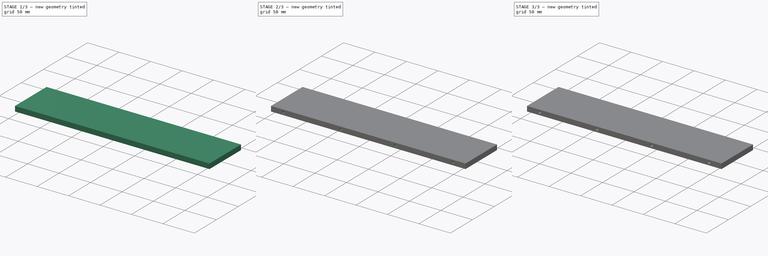
[diagram: build sequence overview — one tinted view per stage of 3, left to right]
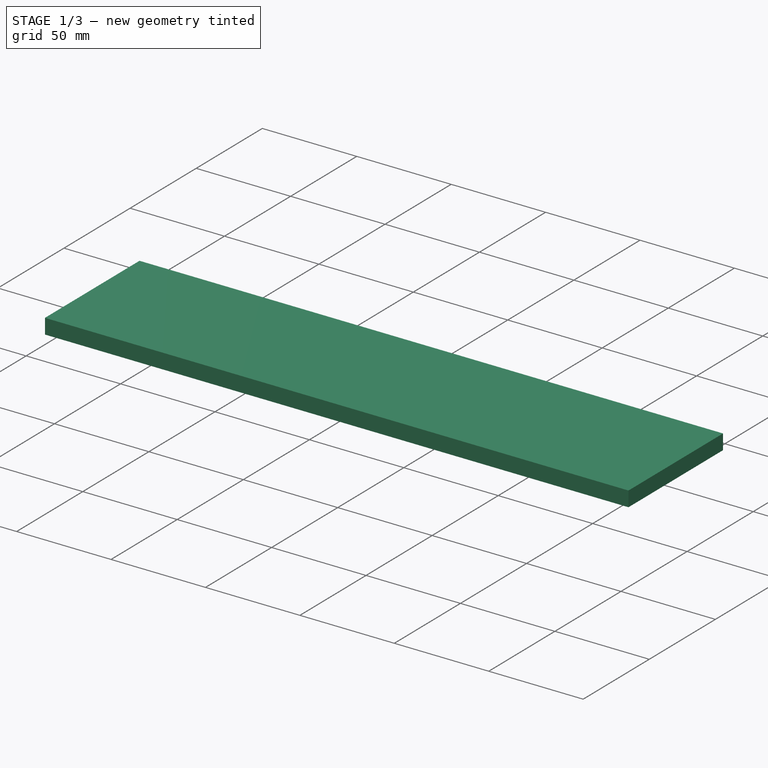
[diagram: stage 1 of 3 — iso view after this stage's code; geometry added in this stage tinted green]
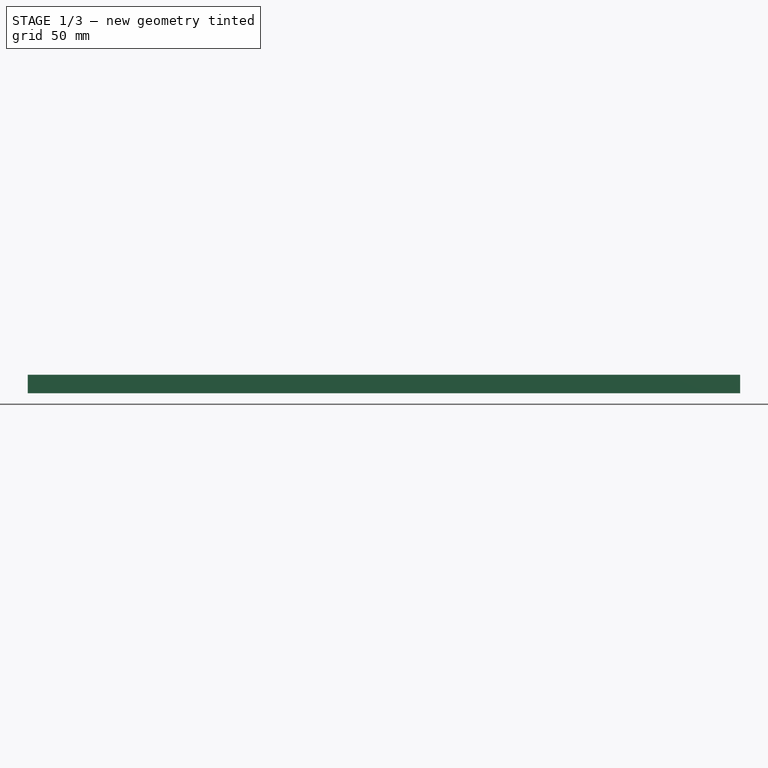
[diagram: stage 1 of 3 — front view after this stage's code; geometry added in this stage tinted green]
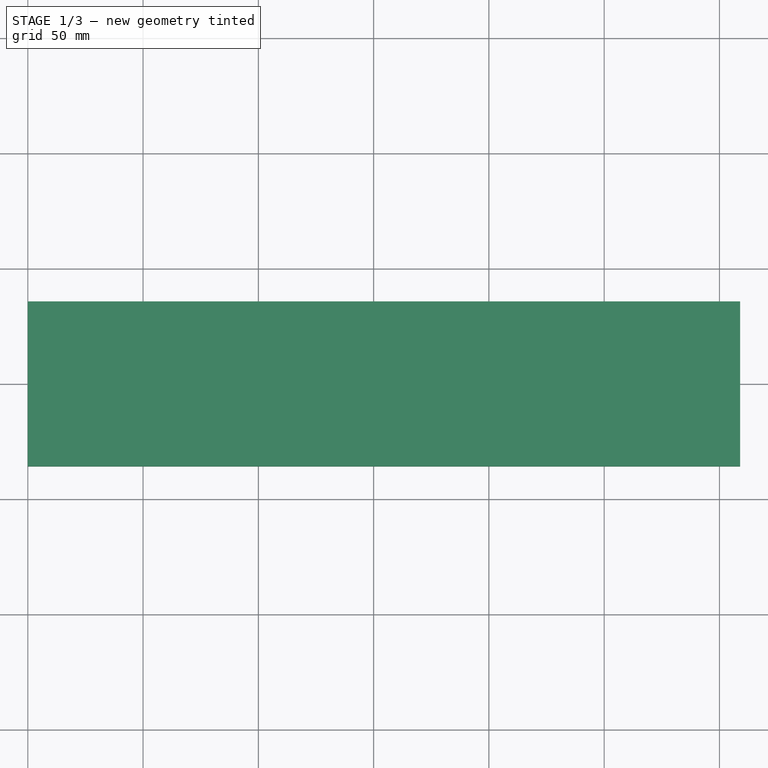
[diagram: stage 1 of 3 — top view after this stage's code; geometry added in this stage tinted green]
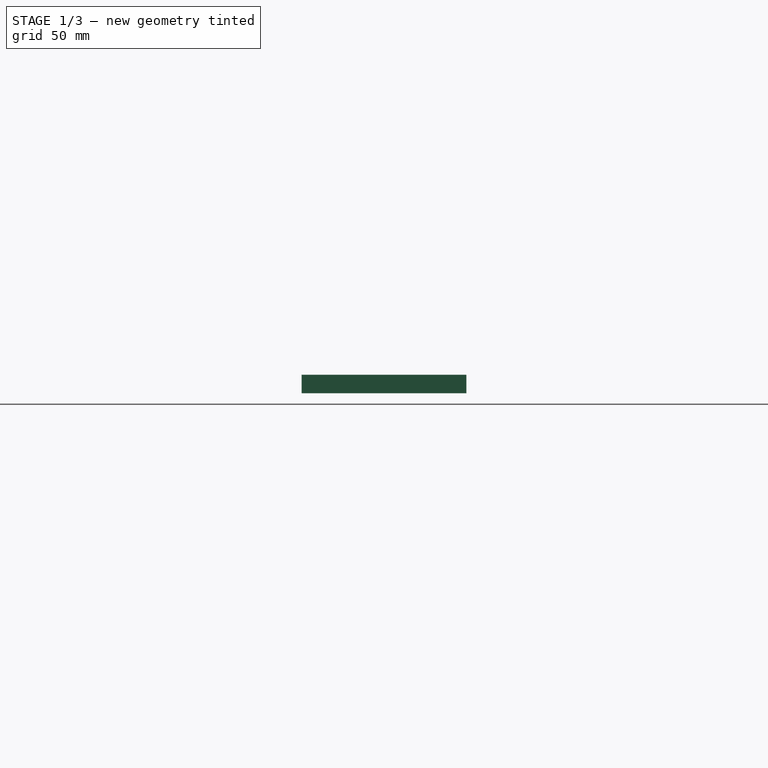
[diagram: stage 1 of 3 — right view after this stage's code; geometry added in this stage tinted green]
FCSTD DOCUMENT  (FreeCAD 0.18R14555 (Git shallow))
Label: x-plate
License: CreativeCommons Attribution-ShareAlike
LicenseURL: http://creativecommons.org/licenses/by-sa/4.0/
objects: Sketcher::SketchObject×4, TechDraw::DrawViewAnnotation×3, PartDesign::Hole×2, PartDesign::Plane×2, PartDesign::Pad×1, PartDesign::Mirrored×1, PartDesign::Pocket×1, PartDesign::Body×1, TechDraw::DrawSVGTemplate×1, TechDraw::DrawProjGroupItem×1, TechDraw::DrawProjGroup×1, TechDraw::DrawViewSection×1, TechDraw::DrawViewPart×1, TechDraw::DrawViewSymbol×1, TechDraw::DrawPage×1
note: 16 computed .brp shape members not serialized (recipe doc carries the construction recipe); baked Part::Feature solids carry a one-line shape summary decoded from their .brp

FEATURE [Sketcher::SketchObject] Sketch
  MapMode = 5
  Support = -> [XY_Plane]
  sketch-geometry (4):
    g0: LineSegment StartX=309 StartY=35.75 StartZ=0 EndX=0 EndY=35.75 EndZ=0
    g1: LineSegment StartX=0 StartY=35.75 StartZ=0 EndX=0 EndY=-35.75 EndZ=0
    g2: LineSegment StartX=0 StartY=-35.75 StartZ=0 EndX=309 EndY=-35.75 EndZ=0
    g3: LineSegment StartX=309 StartY=-35.75 StartZ=0 EndX=309 EndY=35.75 EndZ=0
  constraints (11):
    c: Coincident(g0,g1)
    c: Coincident(g2,g3)
    c: Coincident(g3,g0)
    c: Horizontal(g0)
    c: Horizontal(g2)
    c: Vertical(g3)
    c: DistanceX(g0,g0) = 309
    c: DistanceY(g1,g1) = 71.5
    c: Coincident(g1,g2)
    c: Symmetric(g1,g0,g-1)
    c: PointOnObject(g1,g-2)
FEATURE [PartDesign::Pad] Pad
  Length = 8
  Length2 = 100
  Midplane = true
  Profile = -> Sketch
  Type = 0
FEATURE [Sketcher::SketchObject] Sketch001
  ExternalGeometry = -> [Pad]
  MapMode = 5
  Placement = pos=(0,0,0) rot=(0.57735,0.57735,0.57735;2.0944rad)
  Support = -> [YZ_Plane]
  sketch-geometry (2):
    g0: Circle CenterX=-20.75 CenterY=0 CenterZ=0 NormalX=0 NormalY=0 NormalZ=1 AngleXU=0 Radius=2.05
    g1: Circle CenterX=20.75 CenterY=0 CenterZ=0 NormalX=0 NormalY=0 NormalZ=1 AngleXU=0 Radius=2.05
  constraints (6):
    c: PointOnObject(g0,g-1)
    c: Equal(g1,g0)
    c: Diameter(g1) = 4.1
    c: Symmetric(g0,g1,g-2)
    c: DistanceX(g1,g-3) = 15
    c: DistanceX(g0,g1) = 41.5
FEATURE [PartDesign::Hole] Hole
  BaseFeature = -> Pad
  Depth = 12
  DepthType = 0
  Diameter = 4.1
  DrillPoint = 1
  DrillPointAngle = 118
  HoleCutCountersinkAngle = 90
  HoleCutDepth = 0
  HoleCutDiameter = 0
  HoleCutType = 0
  ModelActualThread = false
  Profile = -> Sketch001
  Reversed = true
  Tapered = false
  TaperedAngle = 90
  ThreadAngle = 0
  ThreadClass = 0
  ThreadCutOffInner = 0
  ThreadCutOffOuter = 0
  ThreadDirection = 0
  ThreadFit = 0
  ThreadPitch = 0
  ThreadSize = 0
  ThreadType = 0
  Threaded = false
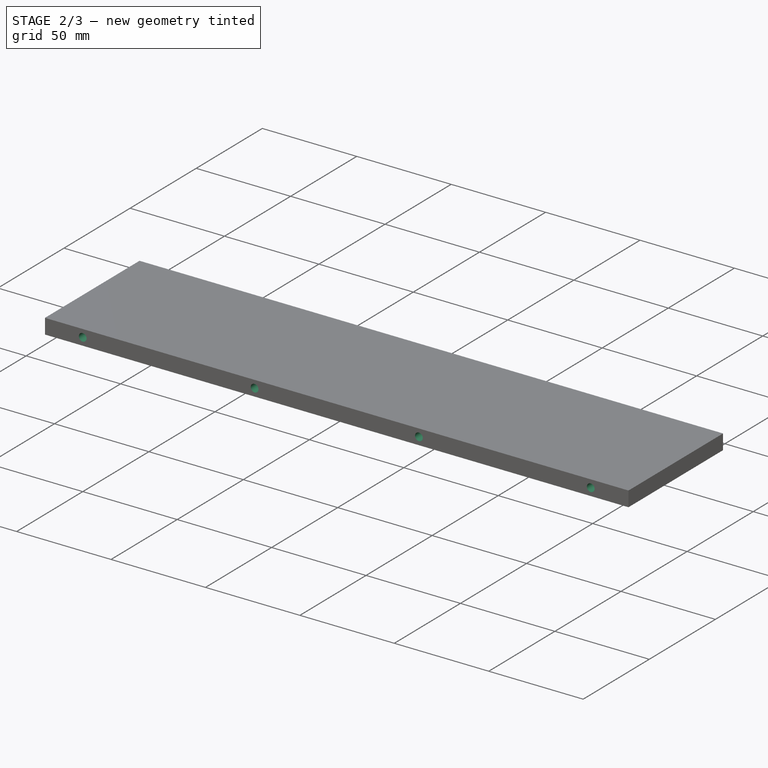
[diagram: stage 2 of 3 — iso view after this stage's code; geometry added in this stage tinted green]
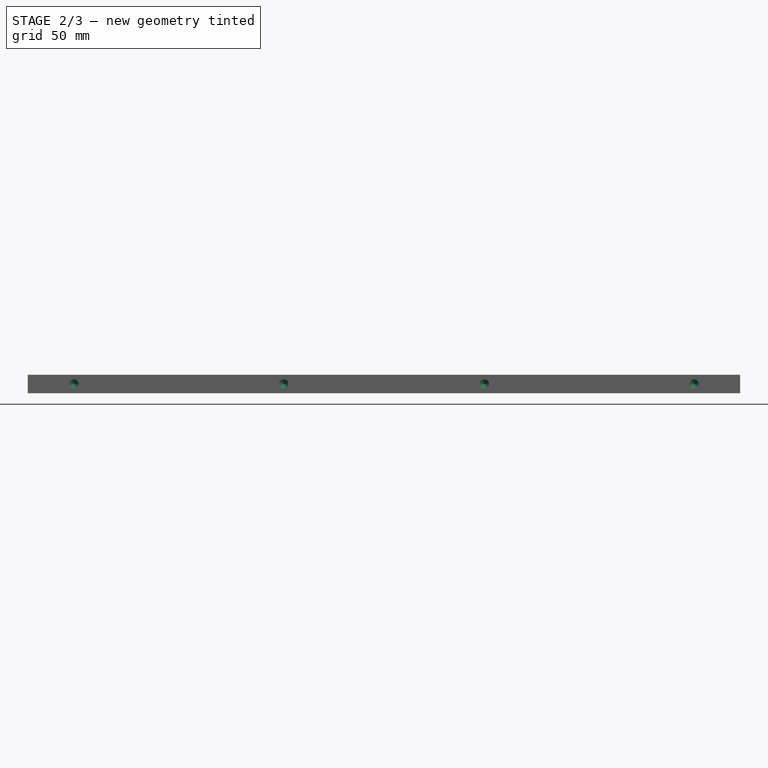
[diagram: stage 2 of 3 — front view after this stage's code; geometry added in this stage tinted green]
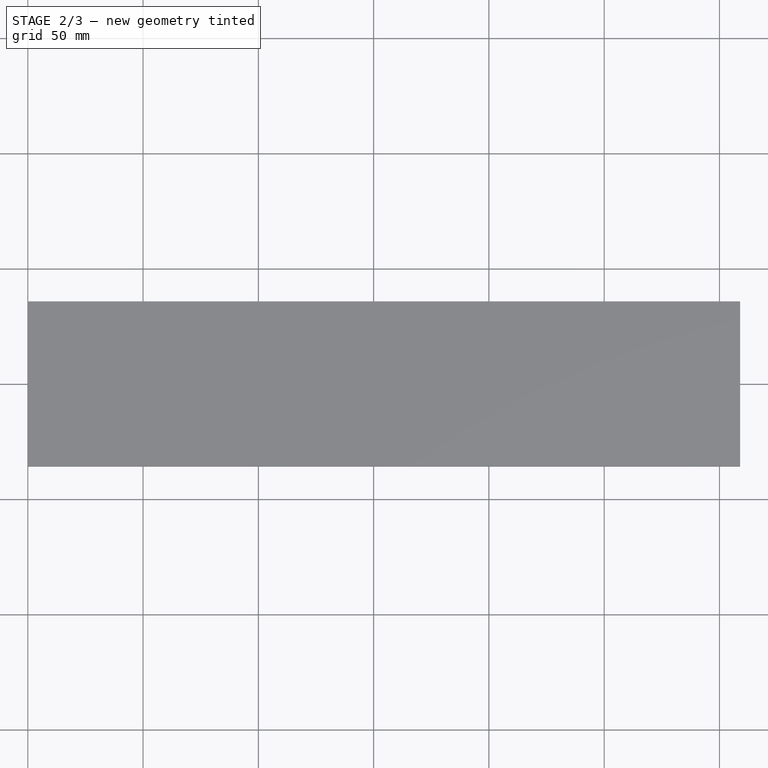
[diagram: stage 2 of 3 — top view after this stage's code; geometry added in this stage tinted green]
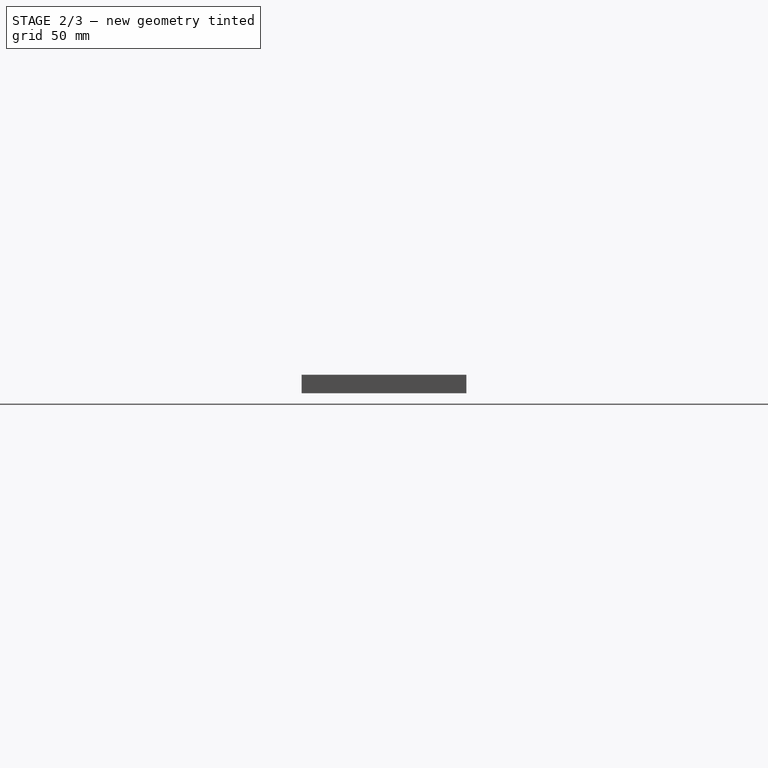
[diagram: stage 2 of 3 — right view after this stage's code; geometry added in this stage tinted green]
FEATURE [PartDesign::Plane] DatumPlane
  Length = 334.975
  MapMode = 5
  Placement = pos=(0,-35.75,0) rot=(1,0,0;1.5708rad)
  ResizeMode = 0
  Support = -> [Hole]
  Width = 35.975
FEATURE [Sketcher::SketchObject] Sketch002
  ExternalGeometry = -> [Hole]
  MapMode = 5
  Placement = pos=(0,-35.75,0) rot=(1,0,0;1.5708rad)
  Support = -> [DatumPlane]
  sketch-geometry (8):
    g0: Circle CenterX=20 CenterY=0 CenterZ=0 NormalX=0 NormalY=0 NormalZ=1 AngleXU=0 Radius=2.05
    g1: Circle CenterX=111 CenterY=0 CenterZ=0 NormalX=0 NormalY=0 NormalZ=1 AngleXU=0 Radius=2.05
    g2: Circle CenterX=198 CenterY=0 CenterZ=0 NormalX=0 NormalY=0 NormalZ=1 AngleXU=0 Radius=2.05
    g3: Circle CenterX=289 CenterY=0 CenterZ=0 NormalX=0 NormalY=0 NormalZ=1 AngleXU=0 Radius=2.05
    g4: LineSegment [constr] StartX=20 StartY=0 StartZ=0 EndX=111 EndY=0 EndZ=0
    g5: LineSegment [constr] StartX=198 StartY=0 StartZ=0 EndX=289 EndY=0 EndZ=0
    g6: LineSegment [constr] StartX=289 StartY=0 StartZ=0 EndX=309 EndY=0 EndZ=0
    g7: LineSegment [constr] StartX=0 StartY=0 StartZ=0 EndX=20 EndY=0 EndZ=0
  constraints (21):
    c: PointOnObject(g0,g-1)
    c: Diameter(g0) = 4.1
    c: DistanceX(g-1,g0) = 20
    c: PointOnObject(g1,g-1)
    c: PointOnObject(g3,g-1)
    c: Equal(g0,g1)
    c: Equal(g1,g2)
    c: Equal(g2,g3)
    c: PointOnObject(g2,g-1)
    c: Coincident(g4,g0)
    c: Coincident(g4,g1)
    c: Coincident(g5,g3)
    c: Coincident(g2,g5)
    c: Coincident(g6,g3)
    c: PointOnObject(g6,g-3)
    c: Horizontal(g6)
    c: Coincident(g7,g-1)
    c: Coincident(g7,g0)
    c: Equal(g7,g6)
    c: DistanceX(g-1,g1) = 111
    c: Equal(g4,g5)
FEATURE [PartDesign::Hole] Hole001
  BaseFeature = -> Hole
  Depth = 12
  DepthType = 0
  Diameter = 4.1
  DrillPoint = 1
  DrillPointAngle = 118
  HoleCutCountersinkAngle = 90
  HoleCutDepth = 0
  HoleCutDiameter = 0
  HoleCutType = 0
  ModelActualThread = false
  Profile = -> Sketch002
  Tapered = false
  TaperedAngle = 90
  ThreadAngle = 0
  ThreadClass = 0
  ThreadCutOffInner = 0
  ThreadCutOffOuter = 0
  ThreadDirection = 0
  ThreadFit = 0
  ThreadPitch = 0
  ThreadSize = 0
  ThreadType = 0
  Threaded = false
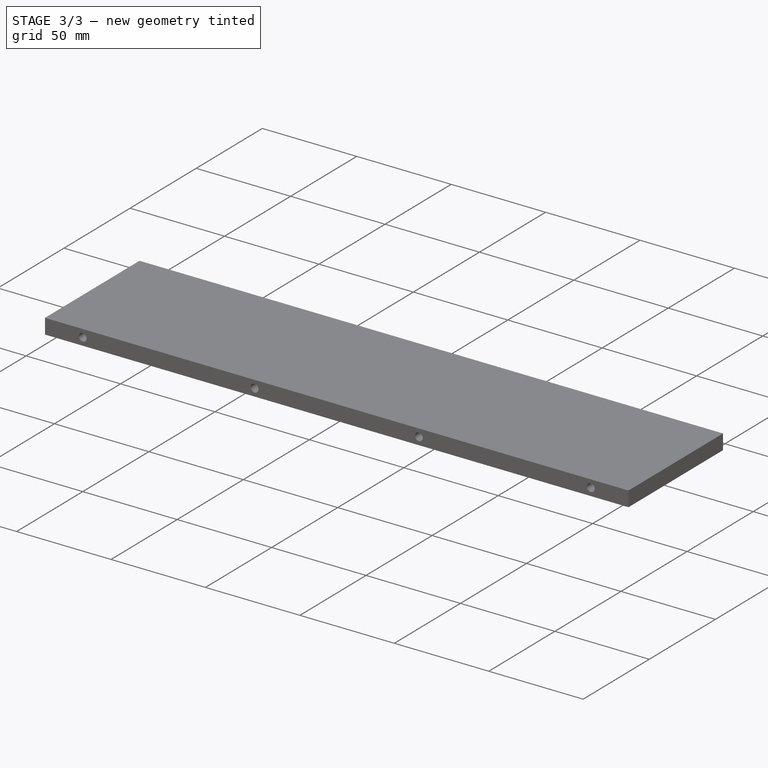
[diagram: stage 3 of 3 — iso view after this stage's code; geometry added in this stage tinted green]
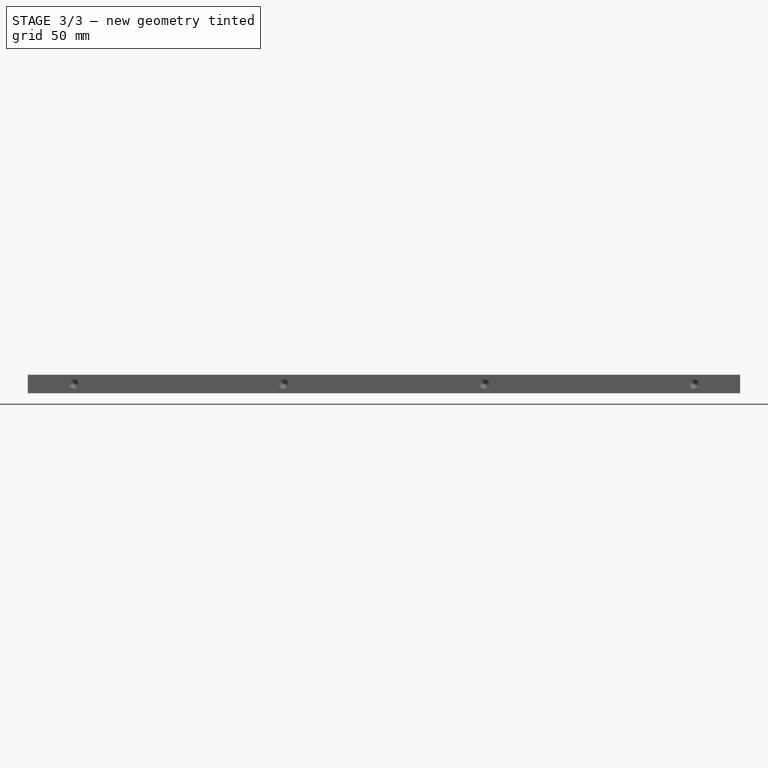
[diagram: stage 3 of 3 — front view after this stage's code; geometry added in this stage tinted green]
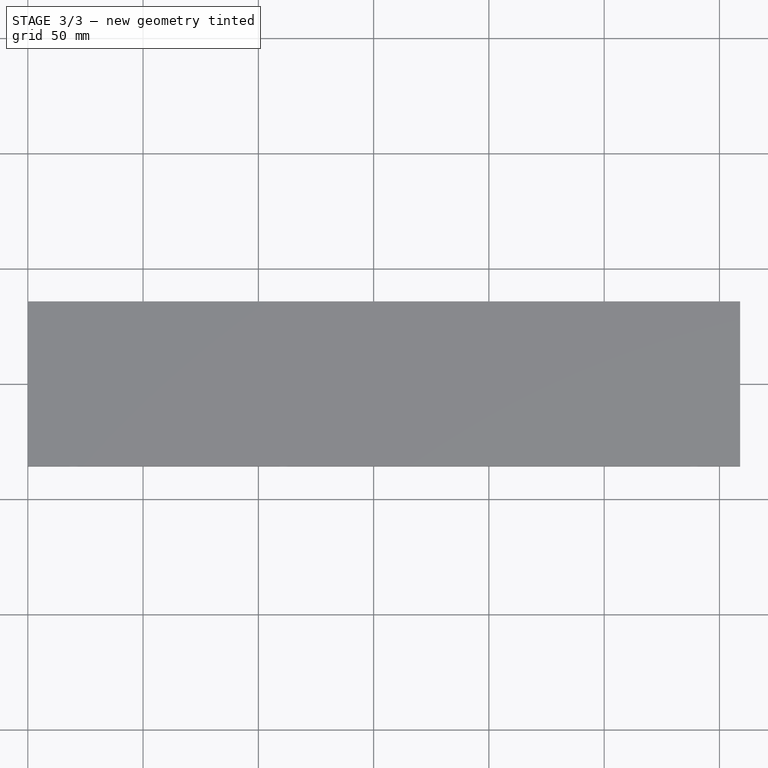
[diagram: stage 3 of 3 — top view after this stage's code; geometry added in this stage tinted green]
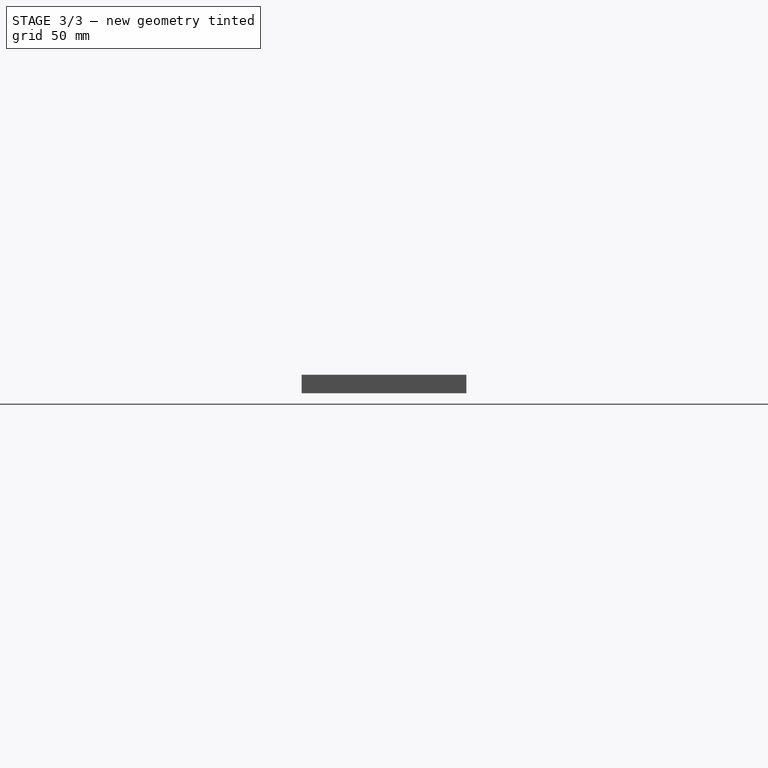
[diagram: stage 3 of 3 — right view after this stage's code; geometry added in this stage tinted green]
FEATURE [PartDesign::Mirrored] Mirrored
  BaseFeature = -> Hole001
  MirrorPlane = -> XZ_Plane
  Originals = -> [Hole001]
FEATURE [PartDesign::Plane] DatumPlane001
  Length = 349.205
  MapMode = 5
  Placement = pos=(0,0,-4) rot=(1,0,0;3.14159rad)
  ResizeMode = 0
  Support = -> [Mirrored]
  Width = 101.705
FEATURE [Sketcher::SketchObject] Sketch003
  MapMode = 5
  Placement = pos=(0,0,-4) rot=(1,0,0;3.14159rad)
  Support = -> [DatumPlane001]
  sketch-geometry (24):
    g0: LineSegment StartX=30.5 StartY=20.25 StartZ=0 EndX=30.5 EndY=-20.25 EndZ=0
    g1: ArcOfCircle CenterX=38.5 CenterY=-20.25 CenterZ=0 NormalX=0 NormalY=0 NormalZ=1 AngleXU=0 Radius=8 StartAngle=3.14159 EndAngle=4.71239
    g2: LineSegment StartX=38.5 StartY=-28.25 StartZ=0 EndX=92.5 EndY=-28.25 EndZ=0
    g3: ArcOfCircle CenterX=92.5 CenterY=-20.25 CenterZ=0 NormalX=0 NormalY=0 NormalZ=1 AngleXU=0 Radius=8 StartAngle=4.71239 EndAngle=6.28319
    g4: LineSegment StartX=100.5 StartY=-20.25 StartZ=0 EndX=100.5 EndY=20.25 EndZ=0
    g5: ArcOfCircle CenterX=92.5 CenterY=20.25 CenterZ=0 NormalX=0 NormalY=0 NormalZ=1 AngleXU=0 Radius=8 StartAngle=0 EndAngle=1.5708
    g6: LineSegment StartX=92.5 StartY=28.25 StartZ=0 EndX=38.5 EndY=28.25 EndZ=0
    g7: ArcOfCircle CenterX=38.5 CenterY=20.25 CenterZ=0 NormalX=0 NormalY=0 NormalZ=1 AngleXU=0 Radius=8 StartAngle=1.5708 EndAngle=3.14159
    g8: LineSegment StartX=122.5 StartY=20.25 StartZ=0 EndX=122.5 EndY=-20.25 EndZ=0
    g9: ArcOfCircle CenterX=130.5 CenterY=-20.25 CenterZ=0 NormalX=0 NormalY=0 NormalZ=1 AngleXU=0 Radius=8 StartAngle=3.14159 EndAngle=4.71239
    g10: LineSegment StartX=130.5 StartY=-28.25 StartZ=0 EndX=178.5 EndY=-28.25 EndZ=0
    g11: ArcOfCircle CenterX=178.5 CenterY=-20.25 CenterZ=0 NormalX=0 NormalY=0 NormalZ=1 AngleXU=0 Radius=8 StartAngle=4.71239 EndAngle=6.28319
    g12: LineSegment StartX=186.5 StartY=-20.25 StartZ=0 EndX=186.5 EndY=20.25 EndZ=0
    g13: ArcOfCircle CenterX=178.5 CenterY=20.25 CenterZ=0 NormalX=0 NormalY=0 NormalZ=1 AngleXU=0 Radius=8 StartAngle=1e-16 EndAngle=1.5708
    g14: LineSegment StartX=178.5 StartY=28.25 StartZ=0 EndX=130.5 EndY=28.25 EndZ=0
    g15: ArcOfCircle CenterX=130.5 CenterY=20.25 CenterZ=0 NormalX=0 NormalY=0 NormalZ=1 AngleXU=0 Radius=8 StartAngle=1.5708 EndAngle=3.14159
    g16: LineSegment StartX=208.5 StartY=20.25 StartZ=0 EndX=208.5 EndY=-20.25 EndZ=0
    g17: ArcOfCircle CenterX=216.5 CenterY=-20.25 CenterZ=0 NormalX=0 NormalY=0 NormalZ=1 AngleXU=0 Radius=8 StartAngle=3.14159 EndAngle=4.71239
    g18: LineSegment StartX=216.5 StartY=-28.25 StartZ=0 EndX=270.5 EndY=-28.25 EndZ=0
    g19: ArcOfCircle CenterX=270.5 CenterY=-20.25 CenterZ=0 NormalX=0 NormalY=0 NormalZ=1 AngleXU=0 Radius=8 StartAngle=4.71239 EndAngle=6.28319
    g20: LineSegment StartX=278.5 StartY=-20.25 StartZ=0 EndX=278.5 EndY=20.25 EndZ=0
    g21: ArcOfCircle CenterX=270.5 CenterY=20.25 CenterZ=0 NormalX=0 NormalY=0 NormalZ=1 AngleXU=0 Radius=8 StartAngle=1e-16 EndAngle=1.5708
    g22: LineSegment StartX=270.5 StartY=28.25 StartZ=0 EndX=216.5 EndY=28.25 EndZ=0
    g23: ArcOfCircle CenterX=216.5 CenterY=20.25 CenterZ=0 NormalX=0 NormalY=0 NormalZ=1 AngleXU=0 Radius=8 StartAngle=1.5708 EndAngle=3.14159
  constraints (63):
    c: Tangent(g0,g1) = -1.5708
    c: Coincident(g1,g2)
    c: Horizontal(g2)
    c: Tangent(g2,g3) = -1.5708
    c: Coincident(g3,g4)
    c: Vertical(g4)
    c: Tangent(g4,g5) = -1.5708
    c: Horizontal(g6)
    c: Tangent(g6,g7) = -1.5708
    c: Tangent(g7,g0) = -1.5708
    c: Radius(g3) = 8
    c: Equal(g3,g5)
    c: Equal(g3,g7)
    c: Equal(g3,g1)
    c: Equal(g4,g0)
    c: Equal(g6,g2)
    c: Symmetric(g0,g0,g-1)
    c: DistanceY(g1,g6) = 56.5
    c: DistanceX(g0,g3) = 70
    c: Tangent(g5,g6) = -1.5708
    c: DistanceX(g-1,g0) = 30.5
    c: Tangent(g8,g9) = -1.5708
    c: Coincident(g9,g10)
    c: Horizontal(g10)
    c: Tangent(g10,g11) = -1.5708
    c: Coincident(g11,g12)
    c: Vertical(g12)
    c: Tangent(g12,g13) = -1.5708
    c: Horizontal(g14)
    c: Tangent(g14,g15) = -1.5708
    c: Tangent(g15,g8) = -1.5708
    c: Equal(g3,g11) = 8
    c: Equal(g11,g13)
    c: Equal(g11,g15)
    c: Equal(g11,g9)
    c: Equal(g12,g8)
    c: Equal(g14,g10)
    c: DistanceX(g8,g11) = 64
    c: Tangent(g13,g14) = -1.5708
    c: Symmetric(g8,g8,g-1)
    c: DistanceX(g4,g8) = 22
    c: Equal(g8,g4)
    c: Tangent(g16,g17) = -1.5708
    c: Coincident(g17,g18)
    c: Horizontal(g18)
    c: Tangent(g18,g19) = -1.5708
    c: Coincident(g19,g20)
    c: Vertical(g20)
    c: Tangent(g20,g21) = -1.5708
    c: Horizontal(g22)
    c: Tangent(g22,g23) = -1.5708
    c: Tangent(g23,g16) = -1.5708
    c: Equal(g19,g21)
    c: Equal(g19,g23)
    c: Equal(g19,g17)
    c: Equal(g20,g16)
    c: Equal(g22,g18)
    c: DistanceX(g16,g19) = 70
    c: Tangent(g21,g22) = -1.5708
    c: Symmetric(g16,g16,g-1)
    c: Equal(g16,g4)
    c: DistanceX(g12,g16) = 22
    c: Equal(g19,g3)
FEATURE [PartDesign::Pocket] Pocket
  BaseFeature = -> Mirrored
  Length = 7
  Length2 = 100
  Profile = -> Sketch003
  Type = 0
FEATURE [PartDesign::Body] Body
  Group = -> [Sketch,Pad,Sketch001,Hole,DatumPlane,Sketch002,Hole001,Mirrored,DatumPlane001,Sketch003,Pocket]
  Origin = -> Origin
  Tip = -> Pocket
FEATURE [TechDraw::DrawSVGTemplate] Template
  EditableTexts = Designed_by_Name=A. Ampatzoglou; FC-Date=07/11/2019; FC-SC=1:1; FC-SHEET=1/1; FC-Title=Deployer - X Plate; MATERIAL=NOTE-1; REV=A; ROUGHNESS=-; Subtitle=x-plate; TOLERANCES=DIN ISO 2768 - mk; Weight=~0.33kg
  Height = 210
  Orientation = 1
  Width = 297
FEATURE [TechDraw::DrawProjGroupItem] ProjItem  label="Front"
  CoarseView = false
  Direction = (-1,0,0)
  Focus = 100
  HardHidden = false
  IsoCount = 0
  IsoHidden = false
  IsoVisible = false
  LockPosition = true
  Perspective = false
  Rotation = 0
  RotationVector = (0,-1,0)
  ScaleType = 2
  SeamHidden = false
  SeamVisible = false
  SmoothHidden = false
  SmoothVisible = false
  Source = -> [Body]
  Type = 0
  X = 0
  Y = 0
FEATURE [TechDraw::DrawProjGroup] ProjGroup
  Anchor = -> ProjItem
  AutoDistribute = true
  LockPosition = false
  ProjectionType = 1
  Rotation = 0
  ScaleType = 2
  Source = -> [Body]
  Views = -> [ProjItem]
  X = 172.284
  Y = 138.088
  spacingX = 15
  spacingY = 15
FEATURE [TechDraw::DrawViewSection] DrawViewSection  label="Section A - A"
  BaseView = -> ProjItem
  CoarseView = false
  Direction = (0,0,1)
  FileHatchPattern = <path>
  Focus = 100
  FuseBeforeCut = true
  HardHidden = false
  HatchScale = 1
  IsoCount = 0
  IsoHidden = false
  IsoVisible = false
  LockPosition = false
  NameGeomPattern = Diamond
  Perspective = false
  Rotation = 0
  Scale = 0.5
  ScaleType = 0
  SeamHidden = false
  SeamVisible = false
  SectionDirection = 3
  SectionNormal = (0,0,1)
  SectionOrigin = (154.5,0,0)
  SectionSymbol = A
  SmoothHidden = false
  SmoothVisible = false
  Source = -> [Body]
  X = 77.4357
  Y = 111.661
FEATURE [TechDraw::DrawViewPart] View
  CoarseView = false
  Direction = (-0.769,0.478,-0.425)
  Focus = 100
  HardHidden = false
  IsoCount = 0
  IsoHidden = false
  IsoVisible = false
  LockPosition = false
  Perspective = false
  Rotation = 0
  Scale = 0.2
  ScaleType = 0
  SeamHidden = false
  SeamVisible = false
  SmoothHidden = false
  SmoothVisible = false
  Source = -> [Body]
  X = 255.764
  Y = 179.701
FEATURE [TechDraw::DrawViewAnnotation] Annotation  label="SCALE"
  Font = DejaVu Sans
  LineSpace = 80
  LockPosition = false
  MaxWidth = -1
  Rotation = 0
  ScaleType = 0
  Text = SCALE 0.2
  TextSize = 6
  TextStyle = 0
  X = 255.415
  Y = 151.144
FEATURE [TechDraw::DrawViewAnnotation] Annotation001  label="Notes"
  Font = DejaVu Sans
  LineSpace = 80
  LockPosition = false
  MaxWidth = -1
  Rotation = 0
  ScaleType = 0
  Text = Notes: | 1. Material: Al 7075 | 2. All holes are Drill Holes  \u23004.1mm for  | M4x0.7x2D HELICOIL insert | 3. This part is mating with flange and y-plate
  TextSize = 6
  TextStyle = 0
  X = 215.122
  Y = 83.9303
FEATURE [TechDraw::DrawViewSymbol] Symbol
  LockPosition = false
  Rotation = 0
  ScaleType = 2
  Symbol = <blob: 3150 chars omitted>
  X = 23.5084
  Y = 178.381
FEATURE [TechDraw::DrawViewAnnotation] Annotation002
  Font = DejaVu Sans
  LineSpace = 80
  LockPosition = false
  MaxWidth = -1
  Rotation = 0
  ScaleType = 0
  Text = SCALE 0.5
  TextSize = 6
  TextStyle = 0
  X = 77.8731
  Y = 20.3731
FEATURE [TechDraw::DrawPage] Page
  KeepUpdated = true
  ProjectionType = 0
  Template = -> Template
  Views = -> [ProjGroup,DrawViewSection,View,Annotation,Annotation001,Symbol,Annotation002]
note: 1 file-system path scrubbed to <path> (originals preserved in the JSON sidecar)
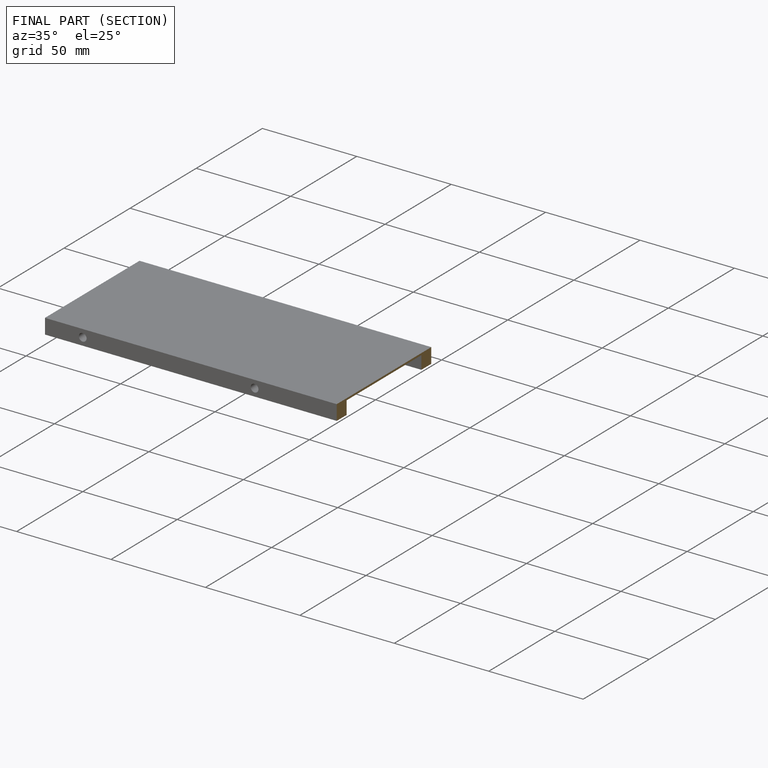
[diagram: finished part — half-section view (interior)]
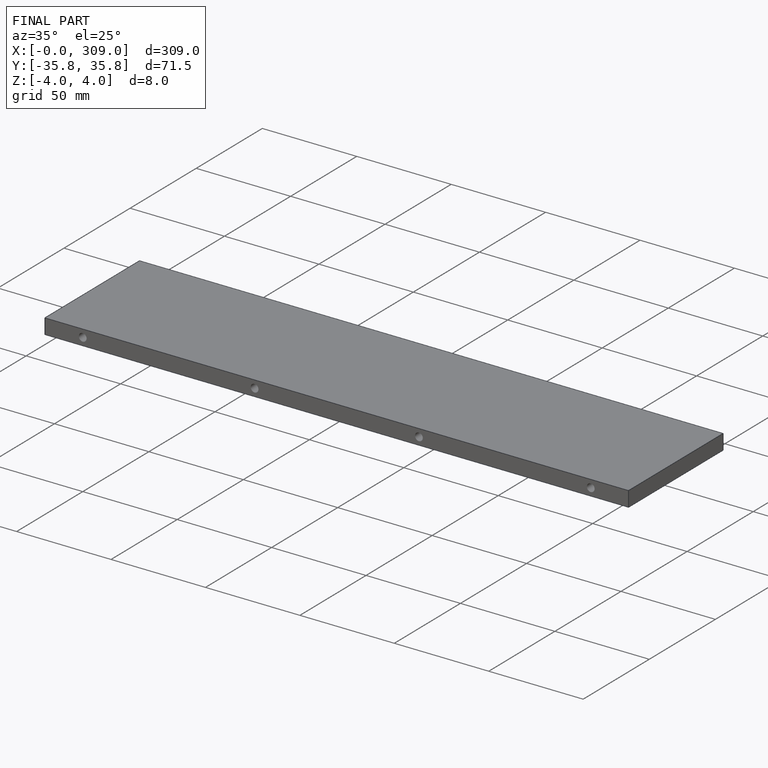
[diagram: finished part — iso view with bounding-box wireframe]
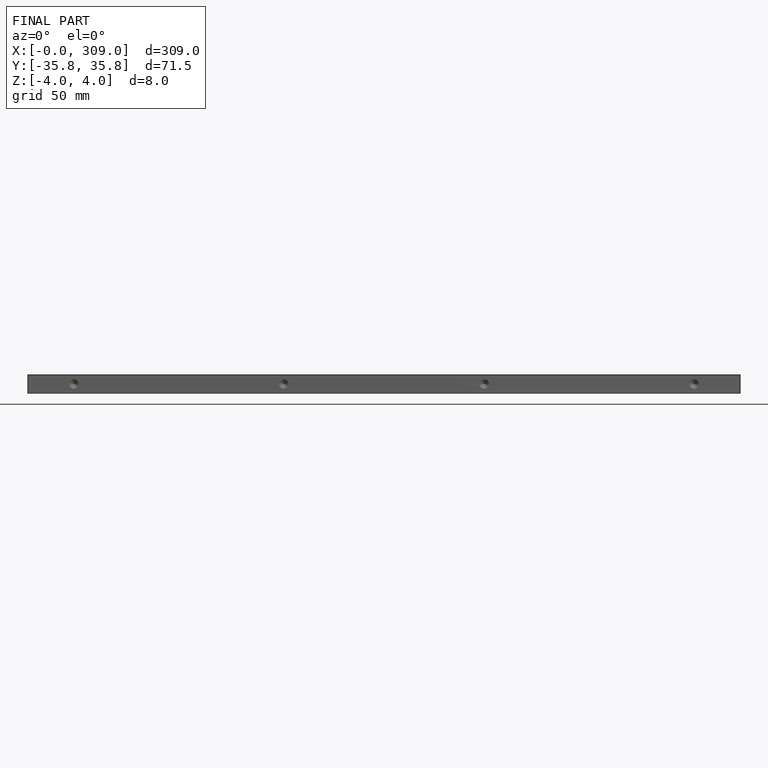
[diagram: finished part — front view with bounding-box wireframe]
